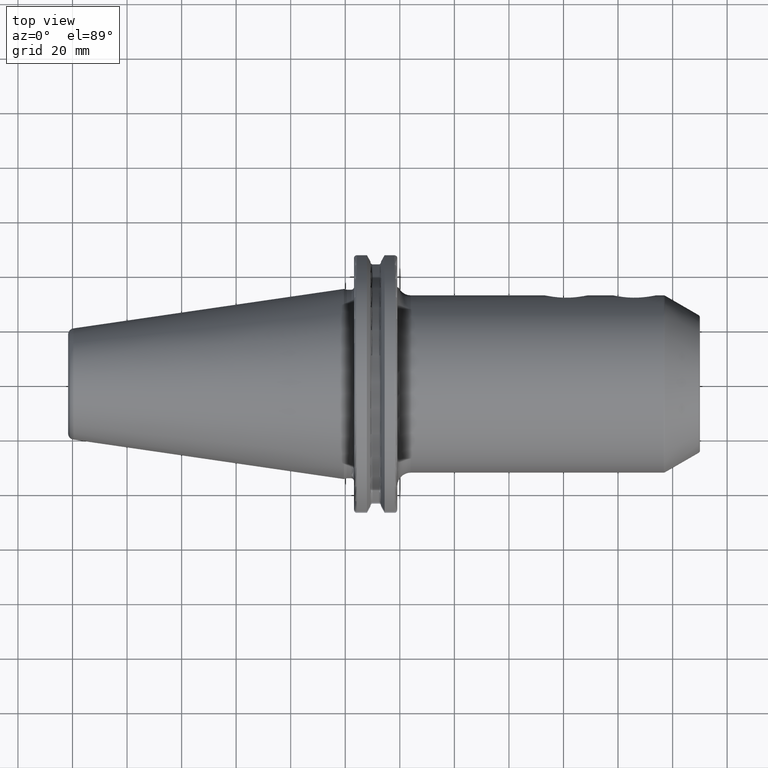
[diagram: clean part render]
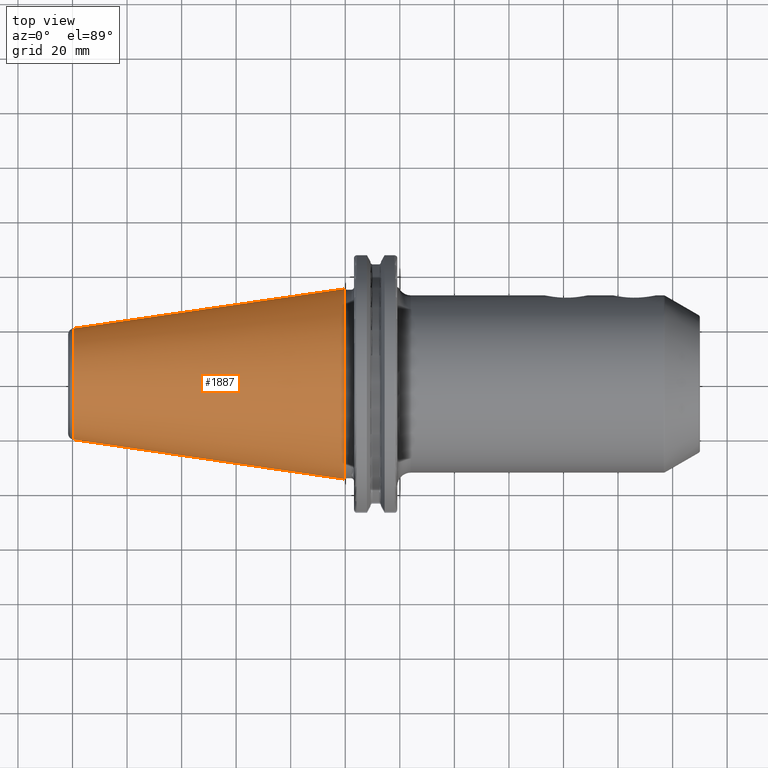
[diagram: same view with one face highlighted and labeled with its STEP entity id]
A machine part, top view. The second image highlights one B-rep face of the part: STEP entity #1887.
In plain terms, the highlighted conical surface has half-angle 8.298 deg.
Its self-contained STEP definition (entity closure, byte-faithful):
#37=CARTESIAN_POINT('',(-9.967471700563E1,0.E0,0.E0));
#38=DIRECTION('',(1.E0,0.E0,0.E0));
#39=DIRECTION('',(0.E0,1.E0,0.E0));
#40=AXIS2_PLACEMENT_3D('',#37,#38,#39);
#42=CARTESIAN_POINT('',(-4.896823332305E-1,0.E0,0.E0));
#43=DIRECTION('',(1.E0,0.E0,0.E0));
#44=DIRECTION('',(0.E0,1.E0,0.E0));
#45=AXIS2_PLACEMENT_3D('',#42,#43,#44);
#47=DIRECTION('',(-9.895312636440E-1,-1.443186691705E-1,0.E0));
#48=VECTOR('',#47,1.002343617797E2);
#49=CARTESIAN_POINT('',(-4.896823332305E-1,3.485358204157E1,0.E0));
#50=LINE('',#49,#48);
#51=DIRECTION('',(-9.895312636440E-1,1.443186691705E-1,0.E0));
#52=VECTOR('',#51,1.002343617797E2);
#53=CARTESIAN_POINT('',(-4.896823332305E-1,-3.485358204157E1,0.E0));
#54=LINE('',#53,#52);
#1550=CARTESIAN_POINT('',(-9.967471700563E1,2.038789234437E1,0.E0));
#1552=VERTEX_POINT('',#1550);
#1554=CARTESIAN_POINT('',(-9.967471700563E1,-2.038789234437E1,0.E0));
#1556=VERTEX_POINT('',#1554);
#1618=CARTESIAN_POINT('',(-4.896823332305E-1,3.485358204157E1,0.E0));
#1619=VERTEX_POINT('',#1618);
#1620=CARTESIAN_POINT('',(-4.896823332305E-1,-3.485358204157E1,0.E0));
#1621=VERTEX_POINT('',#1620);
#1873=CARTESIAN_POINT('',(-5.008219966943E1,0.E0,0.E0));
#1874=DIRECTION('',(1.E0,0.E0,0.E0));
#1875=DIRECTION('',(0.E0,-1.E0,0.E0));
#1876=AXIS2_PLACEMENT_3D('',#1873,#1874,#1875);
#1877=CONICAL_SURFACE('',#1876,2.762073719297E1,8.297826828206E0);
#1879=ORIENTED_EDGE('',*,*,#1878,.F.);
#1881=ORIENTED_EDGE('',*,*,#1880,.T.);
#1883=ORIENTED_EDGE('',*,*,#1882,.T.);
#1884=ORIENTED_EDGE('',*,*,#1866,.F.);
#1885=EDGE_LOOP('',(#1879,#1881,#1883,#1884));
#1886=FACE_OUTER_BOUND('',#1885,.F.);
#1887=ADVANCED_FACE('',(#1886),#1877,.T.);
#41=CIRCLE('',#40,2.038789234437E1);
#46=CIRCLE('',#45,3.485358204157E1);
#1866=EDGE_CURVE('',#1552,#1556,#41,.T.);
#1878=EDGE_CURVE('',#1619,#1552,#50,.T.);
#1880=EDGE_CURVE('',#1619,#1621,#46,.T.);
#1882=EDGE_CURVE('',#1621,#1556,#54,.T.);